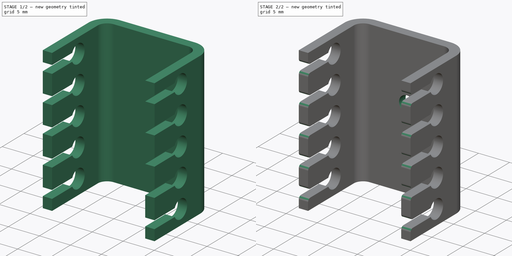
[diagram: build sequence overview — one tinted view per stage of 2, left to right]
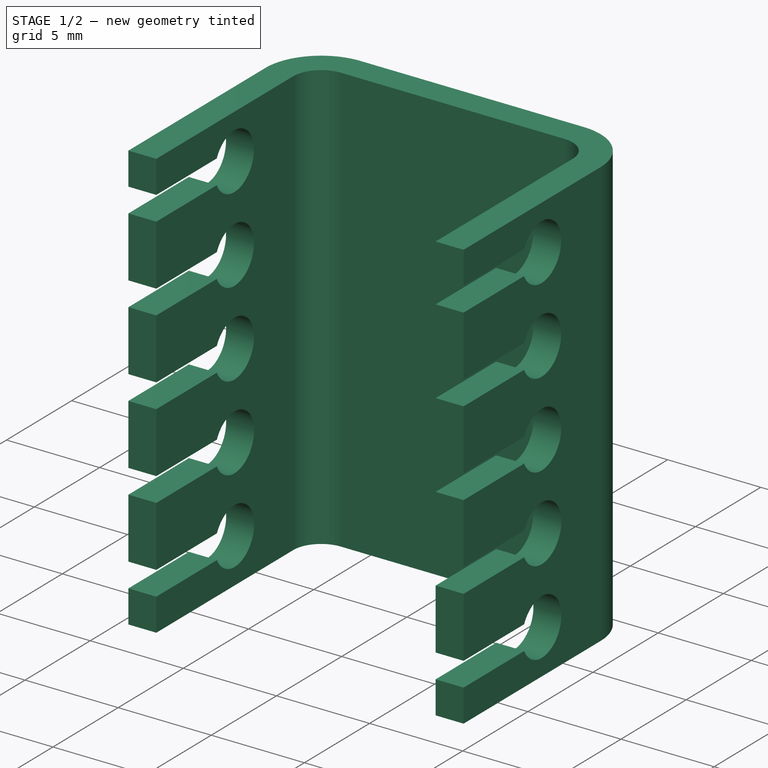
[diagram: stage 1 of 2 — iso view after this stage's code; geometry added in this stage tinted green]
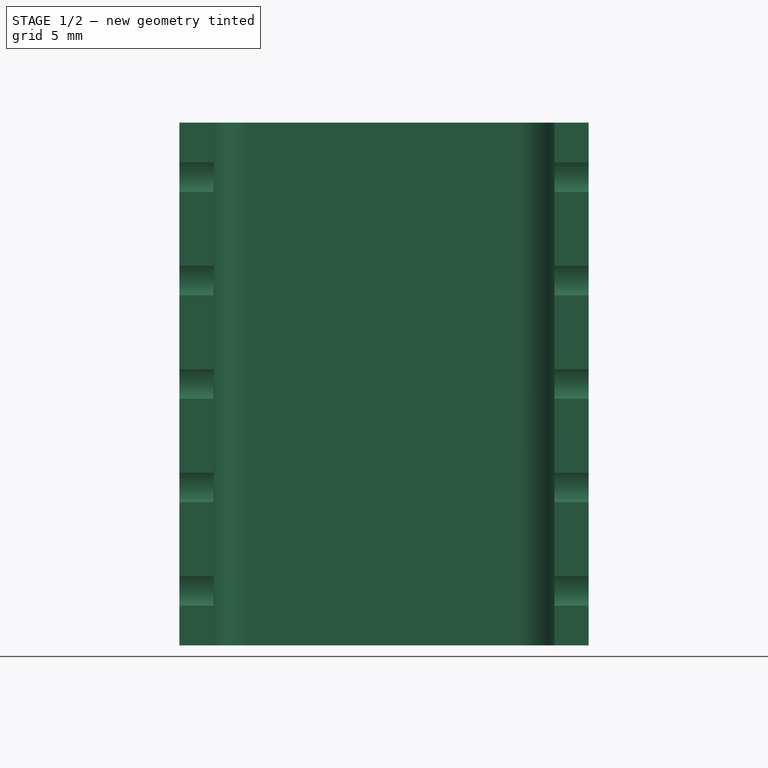
[diagram: stage 1 of 2 — front view after this stage's code; geometry added in this stage tinted green]
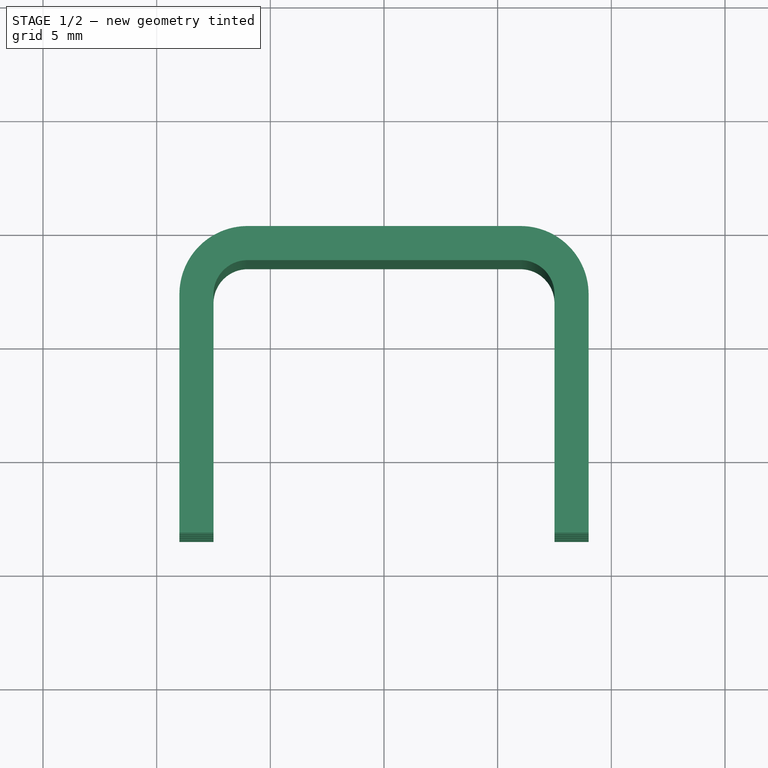
[diagram: stage 1 of 2 — top view after this stage's code; geometry added in this stage tinted green]
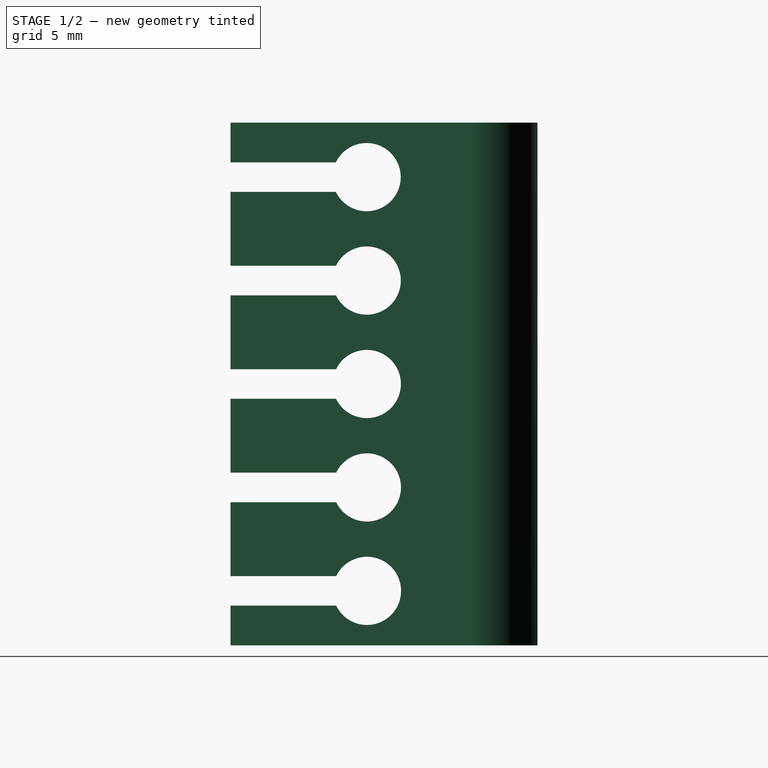
[diagram: stage 1 of 2 — right view after this stage's code; geometry added in this stage tinted green]
FCSTD DOCUMENT  (FreeCAD 0.19R22522 (Git))
Label: KUEHLKOERPER_TO220
License: All rights reserved
LicenseURL: http://en.wikipedia.org/wiki/All_rights_reserved
objects: Sketcher::SketchObject×3, PartDesign::Plane×2, PartDesign::Pocket×2, PartDesign::Pad×1, PartDesign::Fillet×1, PartDesign::Body×1
note: 14 computed .brp shape members not serialized (recipe doc carries the construction recipe); baked Part::Feature solids carry a one-line shape summary decoded from their .brp

FEATURE [Sketcher::SketchObject] Sketch
  MapMode = 5
  Support = -> [XY_Plane]
  sketch-geometry (12):
    g0: LineSegment StartX=-9 StartY=-13.5 StartZ=0 EndX=-9 EndY=-3 EndZ=0
    g1: LineSegment StartX=-6 StartY=-4e-16 StartZ=0 EndX=6 EndY=4e-16 EndZ=0
    g2: LineSegment StartX=9 StartY=-3 StartZ=0 EndX=9 EndY=-13.5 EndZ=0
    g3: LineSegment StartX=9 StartY=-13.5 StartZ=0 EndX=7.5 EndY=-13.5 EndZ=0
    g4: LineSegment StartX=7.5 StartY=-13.5 StartZ=0 EndX=7.5 EndY=-3 EndZ=0
    g5: LineSegment StartX=6 StartY=-1.5 StartZ=0 EndX=-6 EndY=-1.5 EndZ=0
    g6: LineSegment StartX=-7.5 StartY=-3 StartZ=0 EndX=-7.5 EndY=-13.5 EndZ=0
    g7: LineSegment StartX=-9 StartY=-13.5 StartZ=0 EndX=-7.5 EndY=-13.5 EndZ=0
    g8: ArcOfCircle CenterX=-6 CenterY=-3 CenterZ=0 NormalX=0 NormalY=0 NormalZ=1 AngleXU=0 Radius=1.5 StartAngle=1.5708 EndAngle=3.14159
    g9: ArcOfCircle CenterX=6 CenterY=-3 CenterZ=0 NormalX=0 NormalY=0 NormalZ=1 AngleXU=0 Radius=1.5 StartAngle=1e-16 EndAngle=1.5708
    g10: ArcOfCircle CenterX=6 CenterY=-3 CenterZ=0 NormalX=0 NormalY=0 NormalZ=1 AngleXU=0 Radius=3 StartAngle=0 EndAngle=1.5708
    g11: ArcOfCircle CenterX=-6 CenterY=-3 CenterZ=0 NormalX=0 NormalY=0 NormalZ=1 AngleXU=0 Radius=3 StartAngle=1.5708 EndAngle=3.14159
  constraints (31):
    c: Vertical(g0)
    c: Vertical(g2)
    c: Coincident(g3,g2)
    c: Horizontal(g3)
    c: Coincident(g4,g3)
    c: Vertical(g4)
    c: Horizontal(g5)
    c: Vertical(g6)
    c: Coincident(g7,g0)
    c: Coincident(g7,g6)
    c: Horizontal(g7)
    c: Equal(g7,g3)
    c: DistanceX(g3,g3) = 1.5
    c: PointOnObject(g-1,g1)
    c: Equal(g0,g2)
    c: Tangent(g5,g8) = -1.5708
    c: Tangent(g6,g8) = -1.5708
    c: Tangent(g4,g9) = -1.5708
    c: Tangent(g5,g9) = -1.5708
    c: Tangent(g1,g10) = 1.5708
    c: Tangent(g2,g10) = 1.5708
    c: Tangent(g0,g11) = 1.5708
    c: Tangent(g1,g11) = 1.5708
    c: Equal(g8,g9)
    c: Equal(g10,g11)
    c: Radius(g8) = 1.5
    c: Radius(g11) = 3
    c: DistanceY(g2,g1) = 13.5
    c: DistanceX(g0,g2) = 18
    c: DistanceY(g5,g1) = 1.5
    c: Symmetric(g2,g0,g-2)
FEATURE [PartDesign::Pad] Pad
  Direction = (1,1,1)
  Length = 23
  Length2 = 100
  Profile = -> Sketch
  Type = 0
FEATURE [PartDesign::Plane] DatumPlane
  Length = 60
  MapMode = 5
  Placement = pos=(9,0,0) rot=(0.57735,0.57735,0.57735;2.0944rad)
  ResizeMode = 0
  Support = -> [Pad]
  Width = 60
FEATURE [Sketcher::SketchObject] Sketch001
  MapMode = 5
  Placement = pos=(9,0,0) rot=(0.57735,0.57735,0.57735;2.0944rad)
  Support = -> [DatumPlane]
  sketch-geometry (20):
    g0: ArcOfCircle CenterX=-7.5 CenterY=2.4 CenterZ=0 NormalX=0 NormalY=0 NormalZ=1 AngleXU=0 Radius=1.5 StartAngle=3.58978 EndAngle=8.97659
    g1: LineSegment StartX=-8.85185 StartY=3.05 StartZ=0 EndX=-14 EndY=3.05 EndZ=0
    g2: LineSegment StartX=-8.85185 StartY=1.75 StartZ=0 EndX=-14 EndY=1.75 EndZ=0
    g3: LineSegment StartX=-14 StartY=3.05 StartZ=0 EndX=-14 EndY=1.75 EndZ=0
    g4: ArcOfCircle CenterX=-7.50368 CenterY=6.95 CenterZ=0 NormalX=0 NormalY=0 NormalZ=1 AngleXU=0 Radius=1.5 StartAngle=3.58978 EndAngle=8.97659
    g5: LineSegment StartX=-8.85553 StartY=7.6 StartZ=0 EndX=-14.0037 EndY=7.6 EndZ=0
    g6: LineSegment StartX=-8.85553 StartY=6.3 StartZ=0 EndX=-14.0037 EndY=6.3 EndZ=0
    g7: LineSegment StartX=-14.0037 StartY=7.6 StartZ=0 EndX=-14.0037 EndY=6.3 EndZ=0
    g8: ArcOfCircle CenterX=-7.50736 CenterY=11.5 CenterZ=0 NormalX=0 NormalY=0 NormalZ=1 AngleXU=0 Radius=1.5 StartAngle=3.58978 EndAngle=8.97659
    g9: LineSegment StartX=-8.85921 StartY=12.15 StartZ=0 EndX=-14.0074 EndY=12.15 EndZ=0
    g10: LineSegment StartX=-8.85921 StartY=10.85 StartZ=0 EndX=-14.0074 EndY=10.85 EndZ=0
    g11: LineSegment StartX=-14.0074 StartY=12.15 StartZ=0 EndX=-14.0074 EndY=10.85 EndZ=0
    g12: ArcOfCircle CenterX=-7.51104 CenterY=16.05 CenterZ=0 NormalX=0 NormalY=0 NormalZ=1 AngleXU=0 Radius=1.5 StartAngle=3.58978 EndAngle=8.97659
    g13: LineSegment StartX=-8.86289 StartY=16.7 StartZ=0 EndX=-14.011 EndY=16.7 EndZ=0
    g14: LineSegment StartX=-8.86289 StartY=15.4 StartZ=0 EndX=-14.011 EndY=15.4 EndZ=0
    g15: LineSegment StartX=-14.011 StartY=16.7 StartZ=0 EndX=-14.011 EndY=15.4 EndZ=0
    g16: ArcOfCircle CenterX=-7.51472 CenterY=20.6 CenterZ=0 NormalX=0 NormalY=0 NormalZ=1 AngleXU=0 Radius=1.5 StartAngle=3.58978 EndAngle=8.97659
    g17: LineSegment StartX=-8.86657 StartY=21.25 StartZ=0 EndX=-14.0147 EndY=21.25 EndZ=0
    g18: LineSegment StartX=-8.86657 StartY=19.95 StartZ=0 EndX=-14.0147 EndY=19.95 EndZ=0
    g19: LineSegment StartX=-14.0147 StartY=21.25 StartZ=0 EndX=-14.0147 EndY=19.95 EndZ=0
  constraints (61):
    c: Radius(g0) = 1.5
    c: Horizontal(g1)
    c: Horizontal(g2)
    c: DistanceY(g2,g1) = 1.3
    c: Coincident(g2,g0)
    c: Coincident(g1,g0)
    c: DistanceY(g0,g0) = 0.65
    c: Equal(g1,g2)
    c: Coincident(g3,g1)
    c: Coincident(g3,g2)
    c: DistanceX(g0,g-1) = 7.5
    c: DistanceY(g-1,g0) = 2.4
    c: DistanceX(g2,g0) = 6.5
    c: Radius(g4) = 1.5
    c: Horizontal(g5)
    c: Horizontal(g6)
    c: DistanceY(g6,g5) = 1.3
    c: Coincident(g6,g4)
    c: Coincident(g5,g4)
    c: DistanceY(g4,g4) = 0.65
    c: Equal(g5,g6)
    c: Coincident(g7,g5)
    c: Coincident(g7,g6)
    c: DistanceX(g6,g4) = 6.5
    c: Radius(g8) = 1.5
    c: Horizontal(g9)
    c: Horizontal(g10)
    c: DistanceY(g10,g9) = 1.3
    c: Coincident(g10,g8)
    c: Coincident(g9,g8)
    c: DistanceY(g8,g8) = 0.65
    c: Equal(g9,g10)
    c: Coincident(g11,g9)
    c: Coincident(g11,g10)
    c: DistanceX(g10,g8) = 6.5
    c: Radius(g12) = 1.5
    c: Horizontal(g13)
    c: Horizontal(g14)
    c: DistanceY(g14,g13) = 1.3
    c: Coincident(g14,g12)
    c: Coincident(g13,g12)
    c: DistanceY(g12,g12) = 0.65
    c: Equal(g13,g14)
    c: Coincident(g15,g13)
    c: Coincident(g15,g14)
    c: DistanceX(g14,g12) = 6.5
    c: Radius(g16) = 1.5
    c: Horizontal(g17)
    c: Horizontal(g18)
    c: DistanceY(g18,g17) = 1.3
    c: Coincident(g18,g16)
    c: Coincident(g17,g16)
    c: DistanceY(g16,g16) = 0.65
    c: Equal(g17,g18)
    c: Coincident(g19,g17)
    c: Coincident(g19,g18)
    c: DistanceX(g18,g16) = 6.5
    c: DistanceY(g0,g4) = 4.55
    c: DistanceY(g4,g8) = 4.55
    c: DistanceY(g8,g12) = 4.55
    c: DistanceY(g12,g16) = 4.55
FEATURE [PartDesign::Pocket] Pocket
  BaseFeature = -> Pad
  Length = 5
  Length2 = 100
  Profile = -> Sketch001
  Type = 1
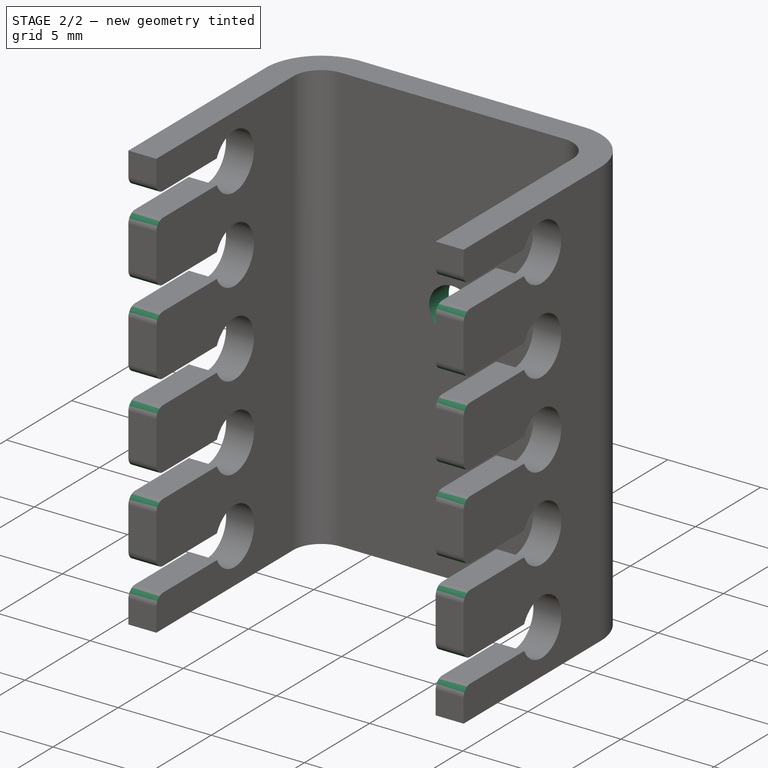
[diagram: stage 2 of 2 — iso view after this stage's code; geometry added in this stage tinted green]
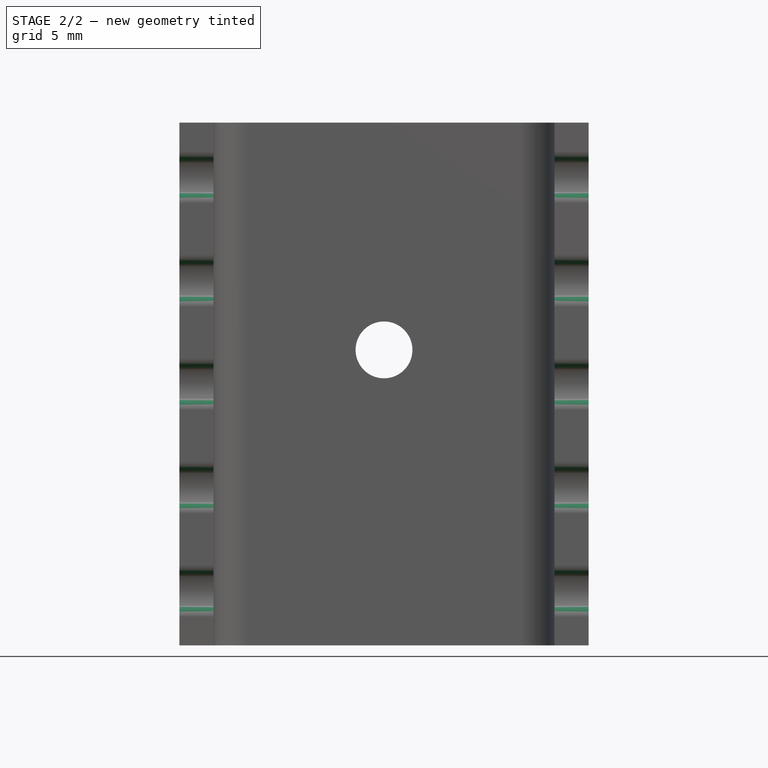
[diagram: stage 2 of 2 — front view after this stage's code; geometry added in this stage tinted green]
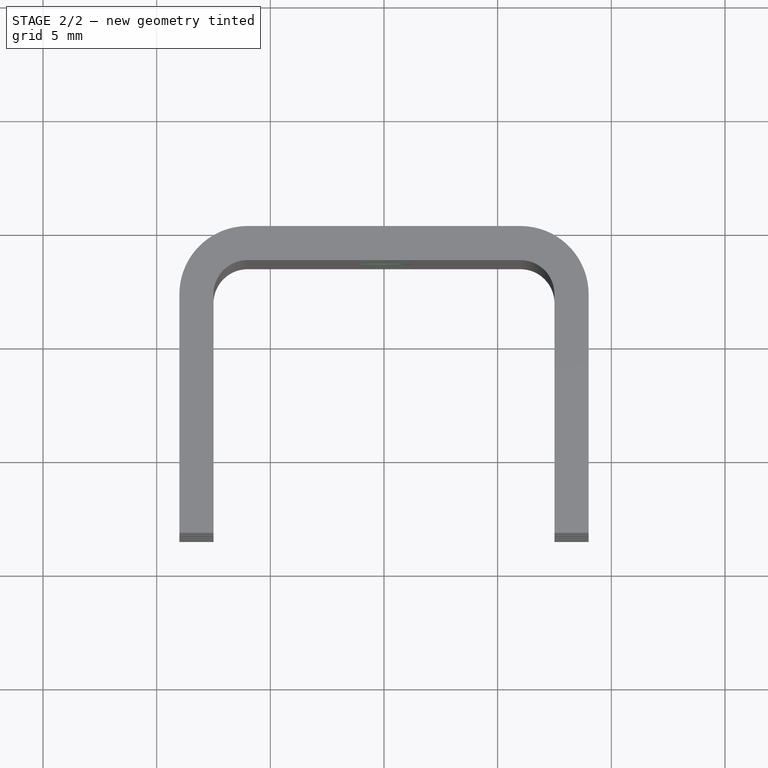
[diagram: stage 2 of 2 — top view after this stage's code; geometry added in this stage tinted green]
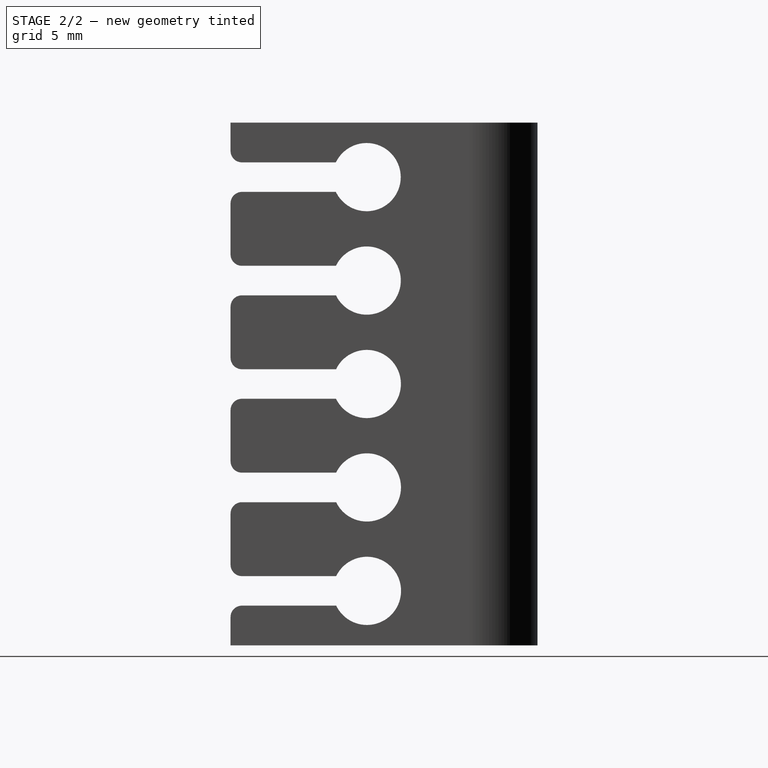
[diagram: stage 2 of 2 — right view after this stage's code; geometry added in this stage tinted green]
FEATURE [PartDesign::Fillet] Fillet
  Base = -> Pocket [Edge154,Edge138,Edge153,Edge150,Edge149,Edge146,Edge145,Edge142,Edge141,Edge114,Edge74,Edge69,Edge66,Edge61,Edge58,Edge53,Edge50,Edge45,Edge42,Edge37]
  BaseFeature = -> Pocket
  Radius = 0.5
  SupportTransform = false
FEATURE [PartDesign::Plane] DatumPlane001
  Length = 60
  MapMode = 5
  Placement = pos=(0,0,0) rot=(0,0.707107,0.707107;3.14159rad)
  ResizeMode = 0
  Support = -> [Fillet]
  Width = 60
FEATURE [Sketcher::SketchObject] Sketch002
  MapMode = 5
  Placement = pos=(0,0,0) rot=(0,0.707107,0.707107;3.14159rad)
  Support = -> [DatumPlane001]
  sketch-geometry (1):
    g0: Circle CenterX=0 CenterY=13 CenterZ=0 NormalX=0 NormalY=0 NormalZ=1 AngleXU=0 Radius=1.25
  constraints (3):
    c: PointOnObject(g0,g-2)
    c: Diameter(g0) = 2.5
    c: DistanceY(g-1,g0) = 13
FEATURE [PartDesign::Pocket] Pocket001
  BaseFeature = -> Fillet
  Length = 5
  Length2 = 100
  Profile = -> Sketch002
  Type = 0
FEATURE [PartDesign::Body] Body  label="KUEHLKOERPER_TO220"
  Group = -> [Sketch,Pad,DatumPlane,Sketch001,Pocket,Fillet,DatumPlane001,Sketch002,Pocket001]
  Origin = -> Origin
  Tip = -> Pocket001
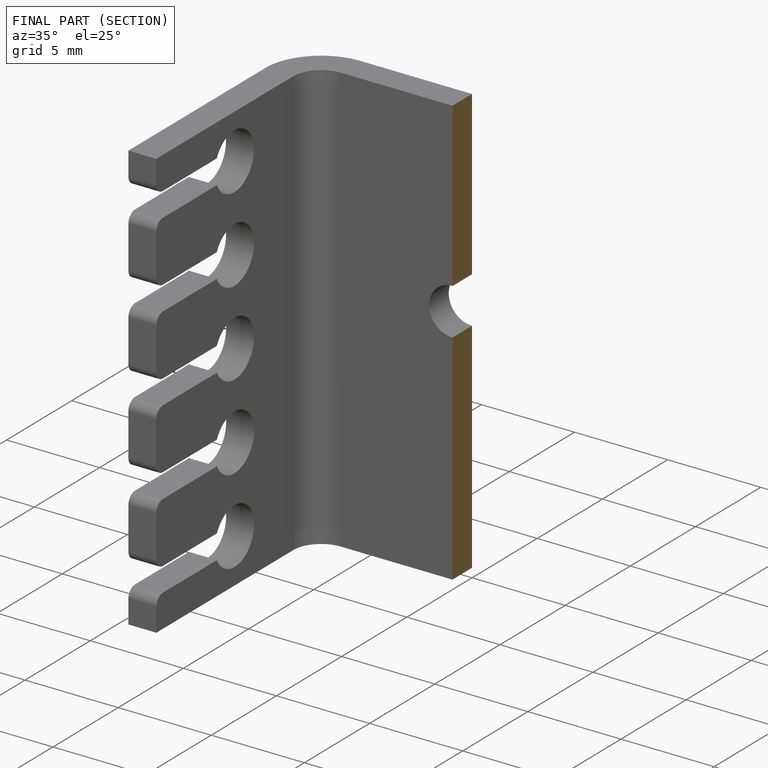
[diagram: finished part — half-section view (interior)]
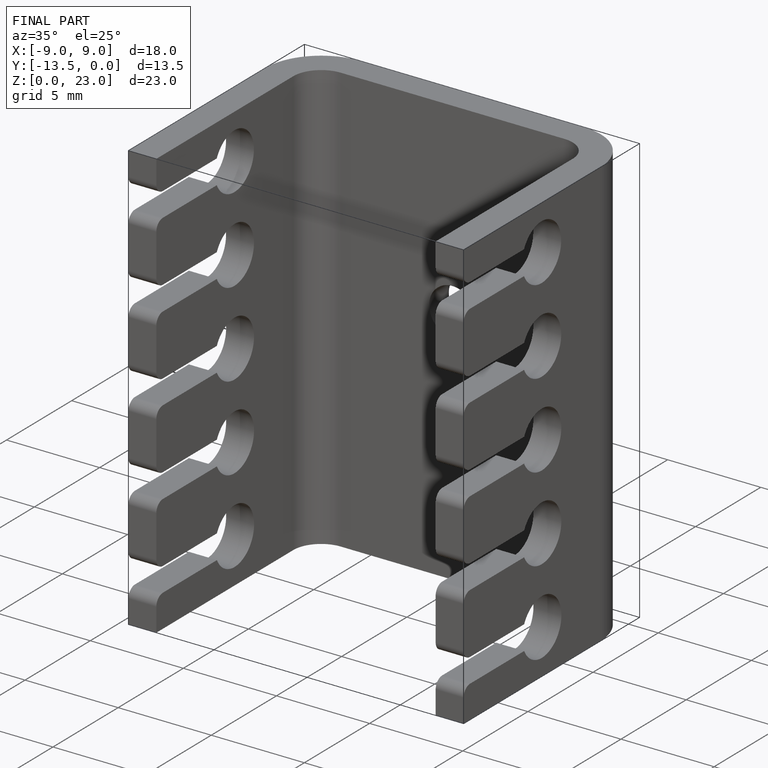
[diagram: finished part — iso view with bounding-box wireframe]
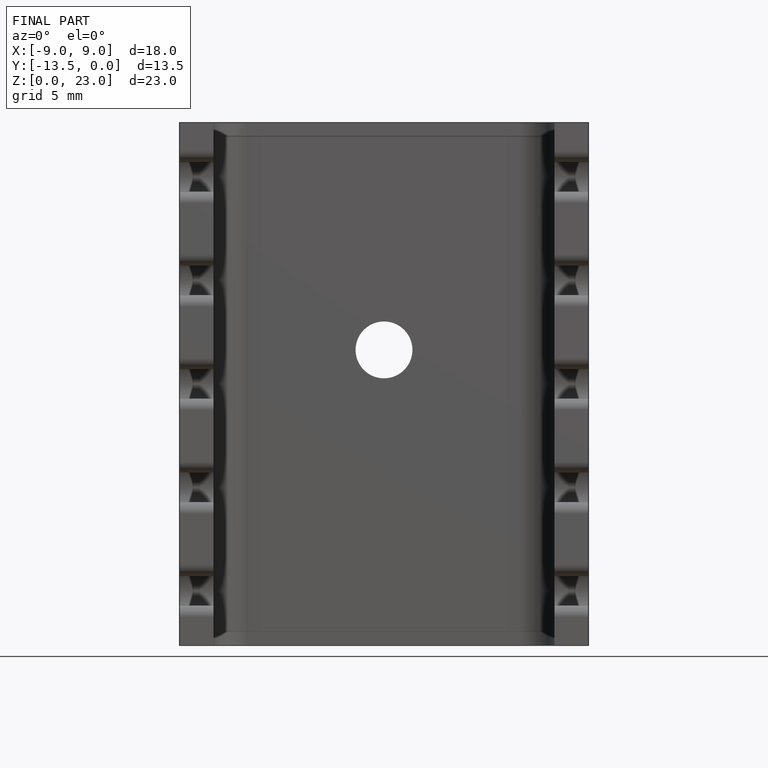
[diagram: finished part — front view with bounding-box wireframe]
